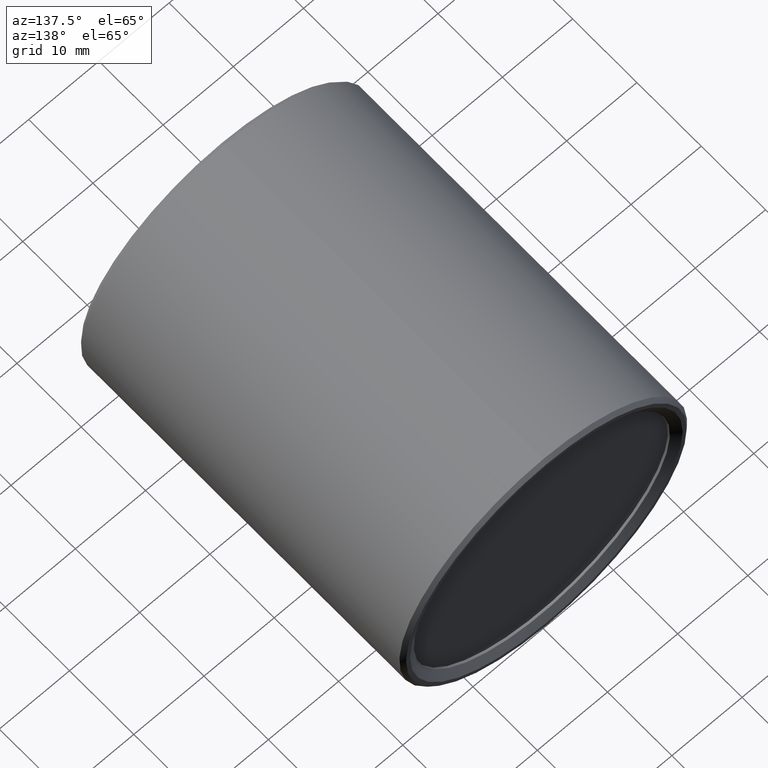
[diagram: clean part render]
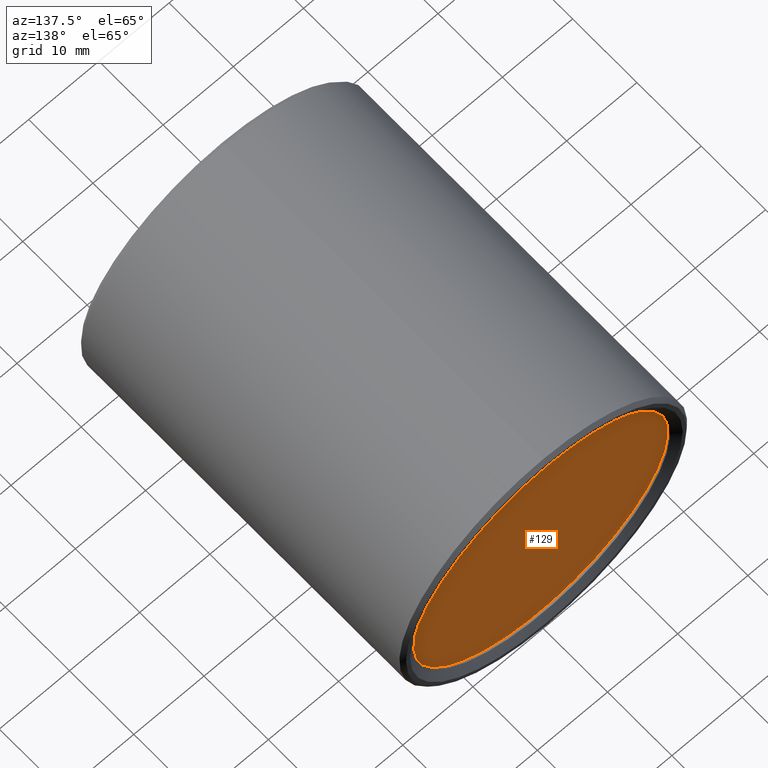
[diagram: same view with one face highlighted and labeled with its STEP entity id]
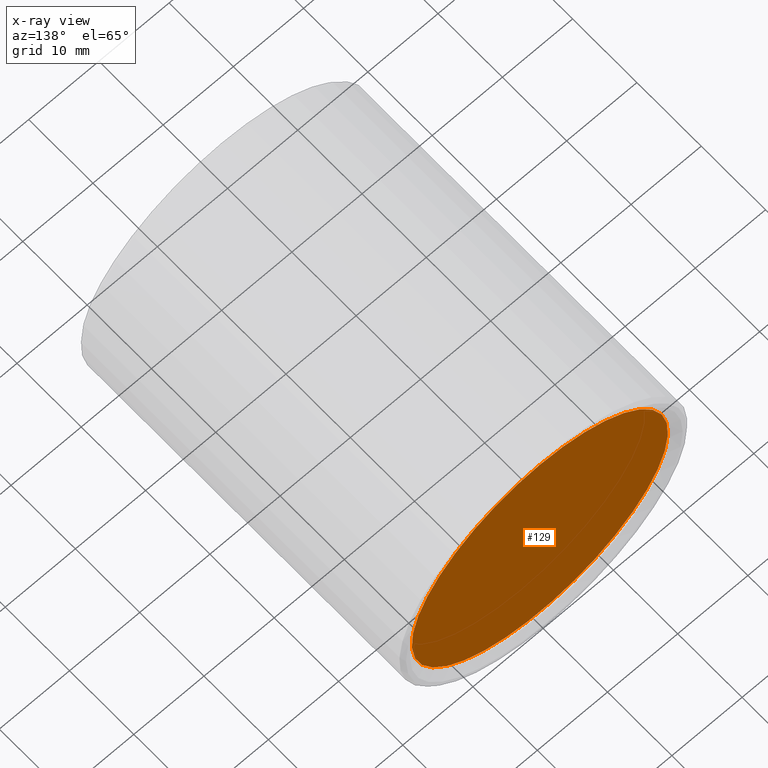
[diagram: x-ray of the same camera — body ghosted, the highlighted face saturated]
A machine part, auxiliary view. The second image highlights one B-rep face of the part: STEP entity #129.
The next image is the same camera in x-ray: the body ghosted, the highlighted face saturated — about 0% of this face is hidden behind the body in this view.
In plain terms, the highlighted planar face has unit normal (0, 1, 0).
Its self-contained STEP definition (entity closure, byte-faithful):
#61 = DIRECTION ( 'NONE',  ( 0.000000000000000000, 1.000000000000000000, 0.000000000000000000 ) ) ;
#74 = EDGE_LOOP ( 'NONE', ( #299 ) ) ;
#83 = AXIS2_PLACEMENT_3D ( 'NONE', #113, #112, #222 ) ;
#91 = CIRCLE ( 'NONE', #83, 18.25000000000000000 ) ;
#100 = VERTEX_POINT ( 'NONE', #238 ) ;
#112 = DIRECTION ( 'NONE',  ( -0.000000000000000000, -1.000000000000000000, -0.000000000000000000 ) ) ;
#113 = CARTESIAN_POINT ( 'NONE',  ( 0.000000000000000000, 49.48000000000000398, 0.000000000000000000 ) ) ;
#119 = PLANE ( 'NONE',  #246 ) ;
#129 = ADVANCED_FACE ( 'NONE', ( #374 ), #119, .T. ) ;
#146 = EDGE_CURVE ( 'NONE', #100, #100, #91, .T. ) ;
#172 = DIRECTION ( 'NONE',  ( 0.000000000000000000, -0.000000000000000000, 1.000000000000000000 ) ) ;
#222 = DIRECTION ( 'NONE',  ( 0.000000000000000000, 0.000000000000000000, 1.000000000000000000 ) ) ;
#238 = CARTESIAN_POINT ( 'NONE',  ( 0.000000000000000000, 49.48000000000000398, 18.25000000000000000 ) ) ;
#246 = AXIS2_PLACEMENT_3D ( 'NONE', #312, #61, #172 ) ;
#299 = ORIENTED_EDGE ( 'NONE', *, *, #146, .F. ) ;
#312 = CARTESIAN_POINT ( 'NONE',  ( 0.000000000000000000, 49.48000000000000398, 0.000000000000000000 ) ) ;
#374 = FACE_OUTER_BOUND ( 'NONE', #74, .T. ) ;